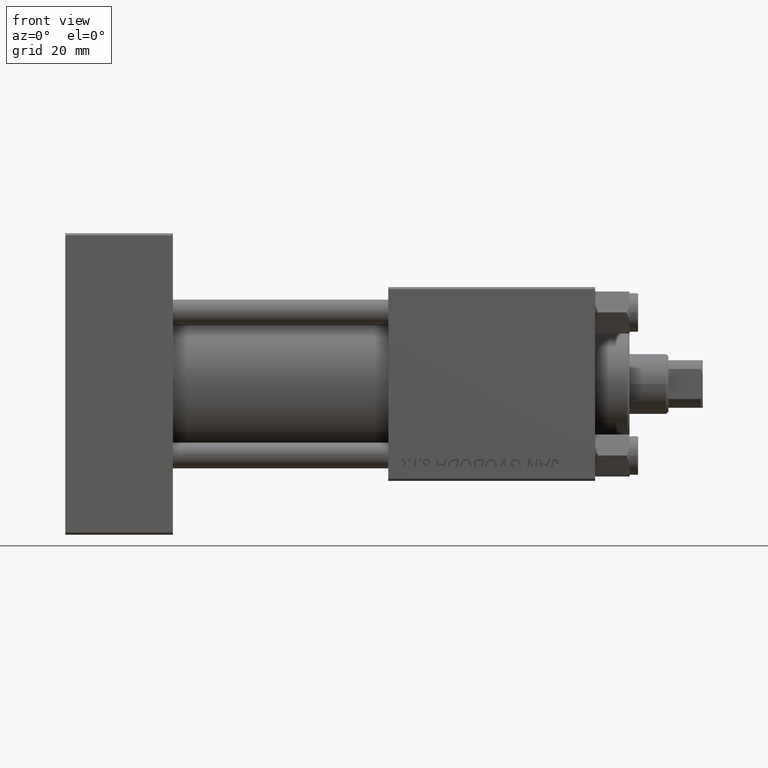
[diagram: clean part render]
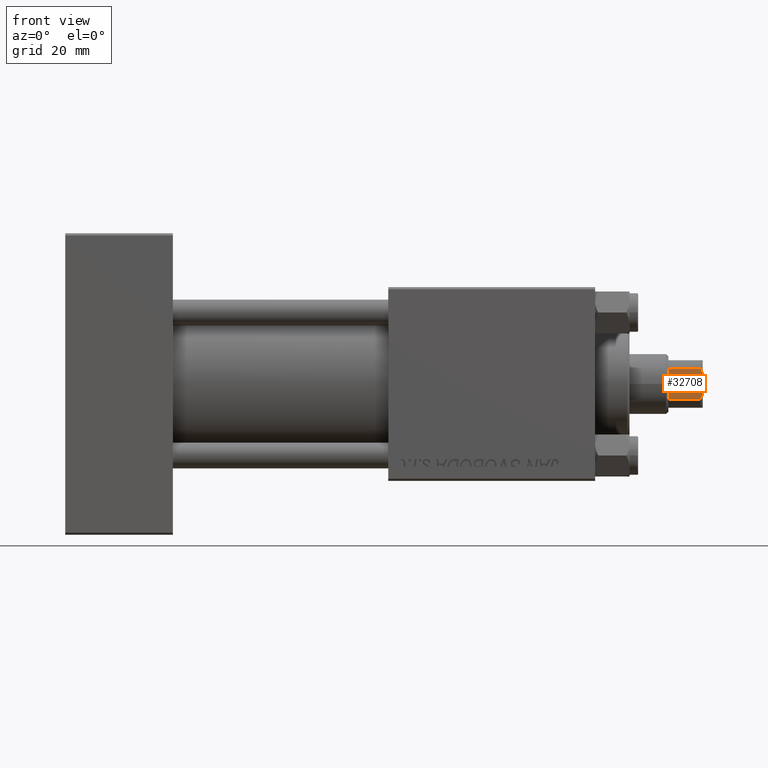
[diagram: same view with one face highlighted and labeled with its STEP entity id]
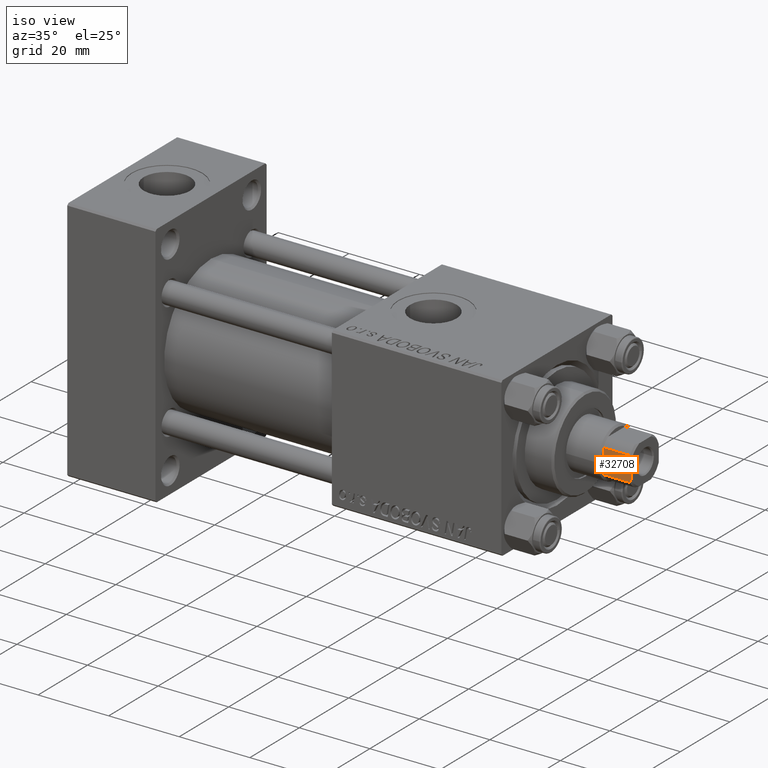
[diagram: same view with one face highlighted and labeled with its STEP entity id]
A machine part, front view. The second image highlights one B-rep face of the part: STEP entity #32708.
A second angle (iso view) of the same face is appended — the face is thin or edge-on in the first view.
In plain terms, the highlighted planar face has unit normal (0, 1, 0).
Its self-contained STEP definition (entity closure, byte-faithful):
#985 = DIRECTION ( 'NONE',  ( -0.000000000000000000, -0.000000000000000000, 1.000000000000000000 ) ) ;
#1815 = VERTEX_POINT ( 'NONE', #46421 ) ;
#2252 = LINE ( 'NONE', #40914, #33478 ) ;
#2345 = EDGE_CURVE ( 'NONE', #11974, #6990, #19771, .T. ) ;
#2589 = CARTESIAN_POINT ( 'NONE',  ( 5.499999999999998224, -3.464101615137757051, -0.001000000000001000089 ) ) ;
#3918 = CARTESIAN_POINT ( 'NONE',  ( 5.500000000000000888, -2.763039233705806730, 122.8540774452369959 ) ) ;
#4214 = ORIENTED_EDGE ( 'NONE', *, *, #6921, .T. ) ;
#5019 = LINE ( 'NONE', #31579, #31674 ) ;
#5122 = CARTESIAN_POINT ( 'NONE',  ( 5.499999999999999112, 5.500000000000000888, 115.0000000000000000 ) ) ;
#5916 = CARTESIAN_POINT ( 'NONE',  ( 5.499999999999999112, 5.500000000000000888, 123.0000000000000000 ) ) ;
#6921 = EDGE_CURVE ( 'NONE', #6990, #1815, #5019, .T. ) ;
#6990 = VERTEX_POINT ( 'NONE', #20173 ) ;
#9137 = CARTESIAN_POINT ( 'NONE',  ( 5.500000000000000000, 2.763039233705782749, 122.8540774452369959 ) ) ;
#9243 = ORIENTED_EDGE ( 'NONE', *, *, #28537, .F. ) ;
#9336 = DIRECTION ( 'NONE',  ( -1.577021341797097560E-16, 1.000000000000000000, -0.000000000000000000 ) ) ;
#10355 = VERTEX_POINT ( 'NONE', #39562 ) ;
#10454 = VECTOR ( 'NONE', #29390, 1000.000000000000000 ) ;
#10660 = ORIENTED_EDGE ( 'NONE', *, *, #18172, .T. ) ;
#10733 = CARTESIAN_POINT ( 'NONE',  ( 5.499999999999998224, -3.464101615137757051, 122.5000000000000142 ) ) ;
#11974 = VERTEX_POINT ( 'NONE', #44399 ) ;
#14481 = AXIS2_PLACEMENT_3D ( 'NONE', #5916, #40292, #32981 ) ;
#15584 = ORIENTED_EDGE ( 'NONE', *, *, #43026, .F. ) ;
#17280 = FACE_OUTER_BOUND ( 'NONE', #47652, .T. ) ;
#18172 = EDGE_CURVE ( 'NONE', #1815, #10355, #46682, .T. ) ;
#19771 = LINE ( 'NONE', #5122, #37033 ) ;
#19957 = EDGE_CURVE ( 'NONE', #37740, #29266, #23033, .T. ) ;
#20173 = CARTESIAN_POINT ( 'NONE',  ( 5.499999999999999112, 3.464101615137755719, 114.9999999999999716 ) ) ;
#20975 = ORIENTED_EDGE ( 'NONE', *, *, #19957, .T. ) ;
#23033 = B_SPLINE_CURVE_WITH_KNOTS ( 'NONE', 3,
 ( #30972, #3918, #45355, #10733 ),
 .UNSPECIFIED., .F., .F.,
 ( 4, 4 ),
 ( 4.336808689942017736E-19, 0.001177604464225487325 ),
 .UNSPECIFIED. ) ;
#24071 = DIRECTION ( 'NONE',  ( -1.577021341797097560E-16, 1.000000000000000000, -0.000000000000000000 ) ) ;
#28537 = EDGE_CURVE ( 'NONE', #11974, #29266, #37473, .T. ) ;
#29266 = VERTEX_POINT ( 'NONE', #41769 ) ;
#29390 = DIRECTION ( 'NONE',  ( -0.000000000000000000, -0.000000000000000000, 1.000000000000000000 ) ) ;
#30972 = CARTESIAN_POINT ( 'NONE',  ( 5.500000000000000000, -2.397915761656381761, 123.0000000000000000 ) ) ;
#31579 = CARTESIAN_POINT ( 'NONE',  ( 5.499999999999999112, 3.464101615137755719, -0.001000000000001000089 ) ) ;
#31674 = VECTOR ( 'NONE', #985, 1000.000000000000000 ) ;
#31921 = CARTESIAN_POINT ( 'NONE',  ( 5.500000000000000000, -2.397915761656381761, 123.0000000000000000 ) ) ;
#32708 = ADVANCED_FACE ( 'NONE', ( #17280 ), #44325, .F. ) ;
#32981 = DIRECTION ( 'NONE',  ( 1.577021341797097560E-16, -1.000000000000000000, 0.000000000000000000 ) ) ;
#33478 = VECTOR ( 'NONE', #9336, 1000.000000000000000 ) ;
#37033 = VECTOR ( 'NONE', #24071, 1000.000000000000000 ) ;
#37473 = LINE ( 'NONE', #2589, #10454 ) ;
#37740 = VERTEX_POINT ( 'NONE', #31921 ) ;
#38666 = ORIENTED_EDGE ( 'NONE', *, *, #2345, .T. ) ;
#39483 = CARTESIAN_POINT ( 'NONE',  ( 5.500000000000000000, 2.397915761656341793, 123.0000000000000000 ) ) ;
#39562 = CARTESIAN_POINT ( 'NONE',  ( 5.500000000000000000, 2.397915761656341793, 123.0000000000000000 ) ) ;
#40292 = DIRECTION ( 'NONE',  ( -1.000000000000000000, -1.577021341797097560E-16, 0.000000000000000000 ) ) ;
#40914 = CARTESIAN_POINT ( 'NONE',  ( 5.499999999999999112, 5.500000000000000888, 123.0000000000000000 ) ) ;
#41769 = CARTESIAN_POINT ( 'NONE',  ( 5.499999999999998224, -3.464101615137757051, 122.5000000000000142 ) ) ;
#43026 = EDGE_CURVE ( 'NONE', #37740, #10355, #2252, .T. ) ;
#43513 = CARTESIAN_POINT ( 'NONE',  ( 5.499999999999999112, 3.117237133530619264, 122.6848575093798672 ) ) ;
#43759 = CARTESIAN_POINT ( 'NONE',  ( 5.499999999999999112, 3.464101615137755719, 122.4999999999999858 ) ) ;
#44325 = PLANE ( 'NONE',  #14481 ) ;
#44399 = CARTESIAN_POINT ( 'NONE',  ( 5.499999999999999112, -3.464101615137757939, 114.9999999999999716 ) ) ;
#45355 = CARTESIAN_POINT ( 'NONE',  ( 5.500000000000000888, -3.117237133530634363, 122.6848575093798814 ) ) ;
#46421 = CARTESIAN_POINT ( 'NONE',  ( 5.499999999999999112, 3.464101615137755719, 122.4999999999999858 ) ) ;
#46682 = B_SPLINE_CURVE_WITH_KNOTS ( 'NONE', 3,
 ( #43759, #43513, #9137, #39483 ),
 .UNSPECIFIED., .F., .F.,
 ( 4, 4 ),
 ( 0.000000000000000000, 0.001177604464225533295 ),
 .UNSPECIFIED. ) ;
#47652 = EDGE_LOOP ( 'NONE', ( #4214, #10660, #15584, #20975, #9243, #38666 ) ) ;